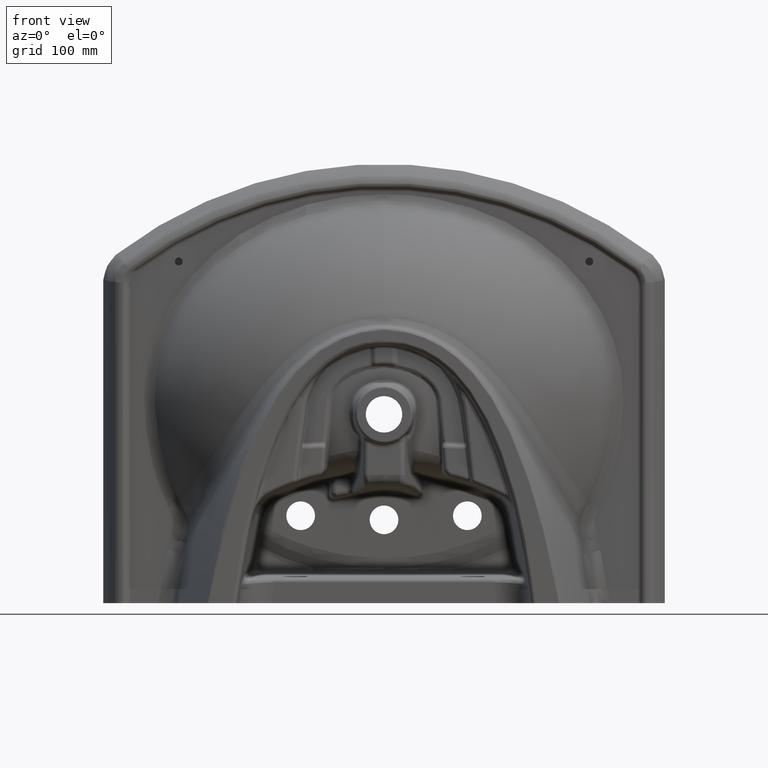
[diagram: clean part render]
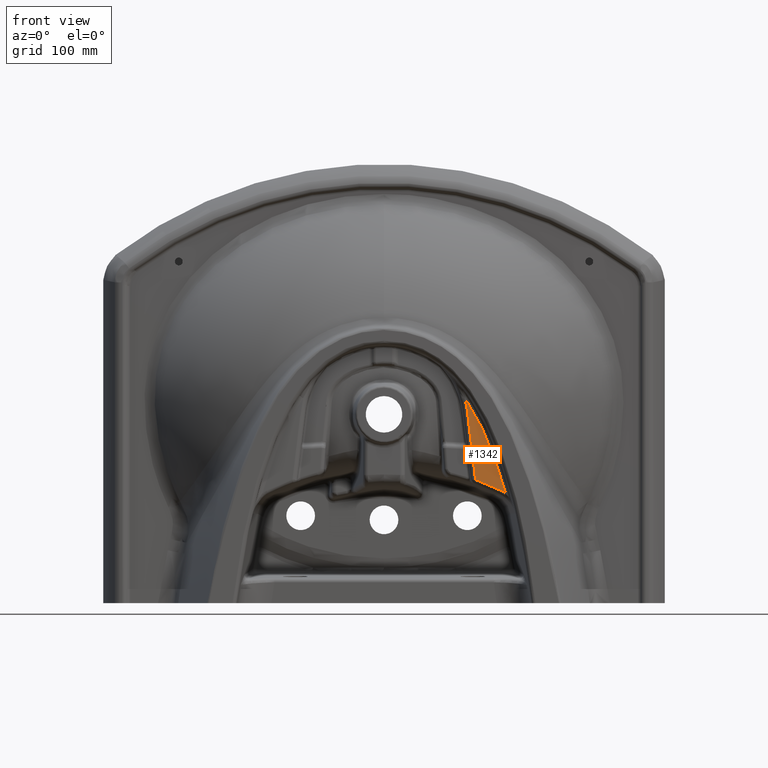
[diagram: same view with one face highlighted and labeled with its STEP entity id]
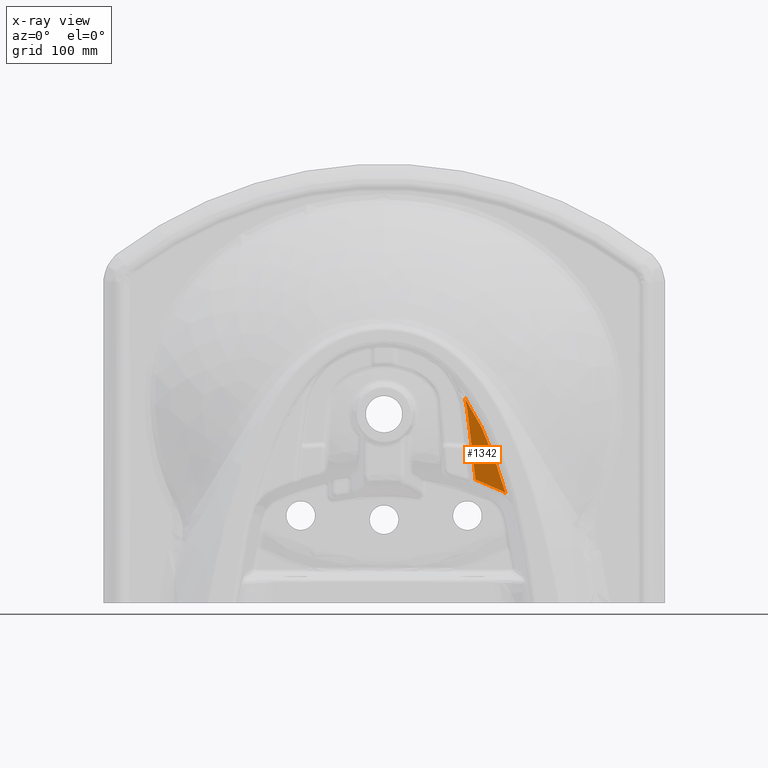
[diagram: x-ray of the same camera — body ghosted, the highlighted face saturated]
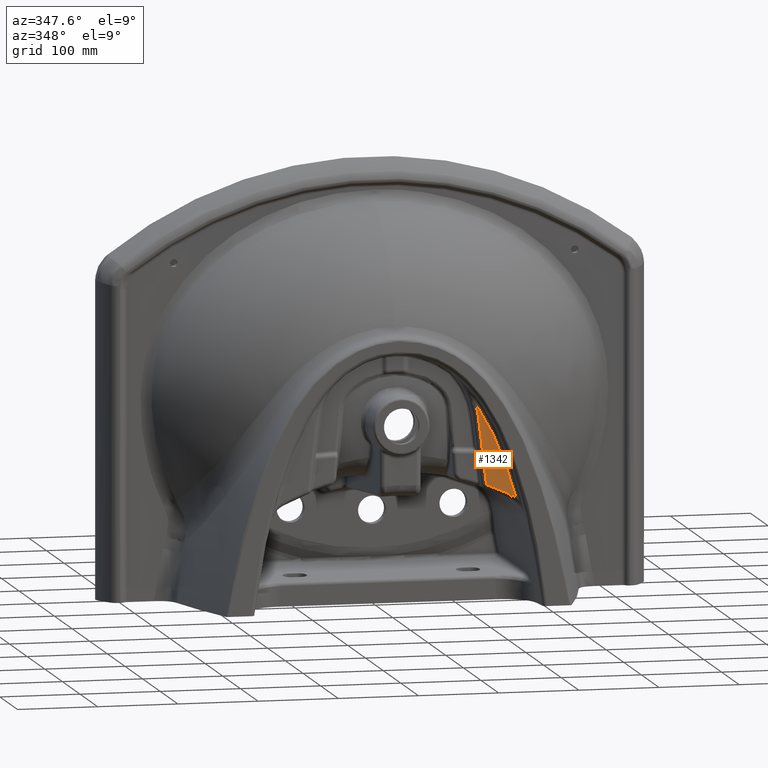
[diagram: same view with one face highlighted and labeled with its STEP entity id]
A machine part, front view. The second image highlights one B-rep face of the part: STEP entity #1342.
The next image is the same camera in x-ray: the body ghosted, the highlighted face saturated — about 0% of this face is hidden behind the body in this view.
A second angle (auxiliary view) of the same face is appended — the face is thin or edge-on in the first view.
In plain terms, the highlighted planar face has unit normal (0, 1, 0).
Its self-contained STEP definition (entity closure, byte-faithful):
#426=PLANE('',#7462);
#1342=ADVANCED_FACE('',(#1872),#426,.F.);
#1872=FACE_OUTER_BOUND('',#2348,.T.);
#2348=EDGE_LOOP('',(#3855,#3856,#3857,#3858));
#3855=ORIENTED_EDGE('',*,*,#6202,.F.);
#3856=ORIENTED_EDGE('',*,*,#6203,.F.);
#3857=ORIENTED_EDGE('',*,*,#6204,.T.);
#3858=ORIENTED_EDGE('',*,*,#6201,.T.);
#5278=VERTEX_POINT('',#28074);
#5279=VERTEX_POINT('',#28082);
#5280=VERTEX_POINT('',#28125);
#5281=VERTEX_POINT('',#28173);
#6201=EDGE_CURVE('',#5278,#5279,#7036,.T.);
#6202=EDGE_CURVE('',#5280,#5279,#7037,.T.);
#6203=EDGE_CURVE('',#5281,#5280,#7038,.T.);
#6204=EDGE_CURVE('',#5281,#5278,#7039,.T.);
#7036=B_SPLINE_CURVE_WITH_KNOTS('',3,(#28083,#28084,#28085,#28086),
 .UNSPECIFIED.,.F.,.F.,(4,4),(0.,1.),.UNSPECIFIED.);
#7037=B_SPLINE_CURVE_WITH_KNOTS('',3,(#28119,#28120,#28121,#28122,#28123,
#28124),.UNSPECIFIED.,.F.,.F.,(4,2,4),(0.,0.5,1.),.UNSPECIFIED.);
#7038=B_SPLINE_CURVE_WITH_KNOTS('',3,(#28126,#28127,#28128,#28129,#28130,
#28131,#28132,#28133,#28134,#28135,#28136,#28137,#28138,#28139,#28140,#28141,
#28142,#28143,#28144,#28145,#28146,#28147,#28148,#28149,#28150,#28151,#28152,
#28153,#28154,#28155,#28156,#28157,#28158,#28159,#28160,#28161,#28162,#28163,
#28164,#28165,#28166,#28167,#28168,#28169,#28170,#28171,#28172),
 .UNSPECIFIED.,.F.,.F.,(4,1,1,1,1,1,1,1,1,1,1,1,1,1,1,1,1,1,1,1,1,1,1,1,
1,1,1,1,1,1,1,1,1,1,1,1,1,1,1,1,1,1,1,1,4),(0.,0.02272727272727,0.04545454545455,
0.06818181818182,0.09090909090909,0.1136363636364,0.1363636363636,0.1590909090909,
0.1818181818182,0.2045454545455,0.2272727272727,0.25,0.2727272727273,0.2954545454545,
0.3181818181818,0.3409090909091,0.3636363636364,0.3863636363636,0.4090909090909,
0.4318181818182,0.4545454545455,0.4772727272727,0.5,0.5227272727273,0.5454545454545,
0.5681818181818,0.5909090909091,0.6136363636364,0.6363636363636,0.6590909090909,
0.6818181818182,0.7045454545455,0.7272727272727,0.75,0.7727272727273,0.7954545454545,
0.8181818181818,0.8409090909091,0.8636363636364,0.8863636363636,0.9090909090909,
0.9318181818182,0.9545454545455,0.9772727272727,1.),.UNSPECIFIED.);
#7039=B_SPLINE_CURVE_WITH_KNOTS('',3,(#28174,#28175,#28176,#28177,#28178,
#28179),.UNSPECIFIED.,.F.,.F.,(4,1,1,4),(0.,0.3333333333333,0.6666666666667,
1.),.UNSPECIFIED.);
#7462=AXIS2_PLACEMENT_3D('',#28180,#8028,#8029);
#8028=DIRECTION('',(0.,1.,0.));
#8029=DIRECTION('',(-1.,0.,0.));
#28074=CARTESIAN_POINT('',(143.2448271776,-23.99999896507,-93.04051495442));
#28082=CARTESIAN_POINT('',(147.8103947063,-23.99998251901,-95.73277701898));
#28083=CARTESIAN_POINT('',(143.2448271776,-24.,-93.04051495442));
#28084=CARTESIAN_POINT('',(144.826834315278,-24.,-93.8381021821642));
#28085=CARTESIAN_POINT('',(146.348690158178,-24.,-94.7355228703509));
#28086=CARTESIAN_POINT('',(147.8103947063,-24.,-95.73277701898));
#28119=CARTESIAN_POINT('',(98.4852213332196,-24.0000000000009,19.7161171500698));
#28120=CARTESIAN_POINT('',(110.310230499332,-24.0000000000078,2.44645879942277));
#28121=CARTESIAN_POINT('',(119.67501326982,-24.0000000001185,-16.4878805360219));
#28122=CARTESIAN_POINT('',(135.600927282212,-24.0000000005479,-55.4041980411279));
#28123=CARTESIAN_POINT('',(142.194253981369,-24.0000000008662,-75.4391483858836));
#28124=CARTESIAN_POINT('',(147.810394706649,-24.0000000012887,-95.7327770188834));
#28125=CARTESIAN_POINT('',(98.48522133322,-24.00000114029,19.71611715007));
#28126=CARTESIAN_POINT('',(111.5485440717,-23.99999682951,-79.46140969917));
#28127=CARTESIAN_POINT('',(111.2827758052,-23.99999682951,-77.24111905008));
#28128=CARTESIAN_POINT('',(110.7690629125,-24.00000147143,-72.949431571));
#28129=CARTESIAN_POINT('',(110.0538254155,-23.99999960573,-66.97418497114));
#28130=CARTESIAN_POINT('',(109.3883215878,-24.00000010564,-61.41442571321));
#28131=CARTESIAN_POINT('',(108.7691659186,-23.99999997169,-56.24185747118));
#28132=CARTESIAN_POINT('',(108.1924030255,-24.00000000758,-51.42341205487));
#28133=CARTESIAN_POINT('',(107.654236244,-23.99999999797,-46.92740511475));
#28134=CARTESIAN_POINT('',(107.1507482627,-24.00000000054,-42.72114556796));
#28135=CARTESIAN_POINT('',(106.6778737952,-23.99999999985,-38.77071137873));
#28136=CARTESIAN_POINT('',(106.233690066,-24.00000000004,-35.06002198975));
#28137=CARTESIAN_POINT('',(105.8178473922,-23.99999999999,-31.58606283278));
#28138=CARTESIAN_POINT('',(105.4301898785,-24.,-28.34748165051));
#28139=CARTESIAN_POINT('',(105.0704068103,-24.,-25.34161833068));
#28140=CARTESIAN_POINT('',(104.7370390834,-24.,-22.55630895876));
#28141=CARTESIAN_POINT('',(104.4277575135,-24.,-19.97232303696));
#28142=CARTESIAN_POINT('',(104.1402113971,-24.,-17.57038753218));
#28143=CARTESIAN_POINT('',(103.8721201029,-24.,-15.33147034748));
#28144=CARTESIAN_POINT('',(103.621176201,-24.,-13.23558531771));
#28145=CARTESIAN_POINT('',(103.3856933225,-24.,-11.26802819692));
#28146=CARTESIAN_POINT('',(103.1650897092,-24.,-9.423496731361));
#28147=CARTESIAN_POINT('',(102.9590225237,-24.,-7.699665419484));
#28148=CARTESIAN_POINT('',(102.7669560641,-24.,-6.093694694781));
#28149=CARTESIAN_POINT('',(102.5883297948,-24.,-4.601753722616));
#28150=CARTESIAN_POINT('',(102.4225290004,-24.,-3.218919535307));
#28151=CARTESIAN_POINT('',(102.2688533937,-24.,-1.94030392638));
#28152=CARTESIAN_POINT('',(102.1273709442,-24.,-0.7616673403262));
#28153=CARTESIAN_POINT('',(101.9979508152,-24.,0.3212490506165));
#28154=CARTESIAN_POINT('',(101.8798713515,-24.,1.318254978426));
#28155=CARTESIAN_POINT('',(101.7698836394,-24.,2.249811802762));
#28156=CARTESIAN_POINT('',(101.6639269137,-24.,3.140755795233));
#28157=CARTESIAN_POINT('',(101.5585013771,-24.,4.013491948748));
#28158=CARTESIAN_POINT('',(101.4508484086,-24.,4.884883002525));
#28159=CARTESIAN_POINT('',(101.3385962777,-24.,5.7619823287));
#28160=CARTESIAN_POINT('',(101.2189811879,-24.,6.644687338079));
#28161=CARTESIAN_POINT('',(101.0909617462,-24.,7.525311432324));
#28162=CARTESIAN_POINT('',(100.9543506946,-23.99999999999,8.404851960623));
#28163=CARTESIAN_POINT('',(100.8053641823,-24.00000000005,9.311123329586));
#28164=CARTESIAN_POINT('',(100.6377826197,-23.9999999998,10.27668683129));
#28165=CARTESIAN_POINT('',(100.4444714739,-24.00000000075,11.32943295067));
#28166=CARTESIAN_POINT('',(100.2197607,-23.99999999718,12.48276936854));
#28167=CARTESIAN_POINT('',(99.96009947629,-24.00000001051,13.73537708781));
#28168=CARTESIAN_POINT('',(99.66160833543,-23.99999996077,15.08579893404));
#28169=CARTESIAN_POINT('',(99.32036746359,-24.00000014641,16.53241052114));
#28170=CARTESIAN_POINT('',(98.93254374968,-23.99999945359,18.07222479463));
#28171=CARTESIAN_POINT('',(98.64046926804,-24.00000117735,19.15828111211));
#28172=CARTESIAN_POINT('',(98.48522133322,-24.00000114029,19.71611715007));
#28173=CARTESIAN_POINT('',(111.5485440717,-23.99999682951,-79.46140969917));
#28174=CARTESIAN_POINT('',(111.5485440717,-23.99999682951,-79.46140969917));
#28175=CARTESIAN_POINT('',(115.0805792338,-23.9999976864,-80.72921891468));
#28176=CARTESIAN_POINT('',(122.1470239744,-24.00000083512,-83.4132718592));
#28177=CARTESIAN_POINT('',(133.0753273593,-24.00000054749,-88.08602493655));
#28178=CARTESIAN_POINT('',(139.8934383943,-23.99999816578,-91.35103467426));
#28179=CARTESIAN_POINT('',(143.2448271776,-23.99999896507,-93.04051495442));
#28180=CARTESIAN_POINT('',(0.,-24.,0.));